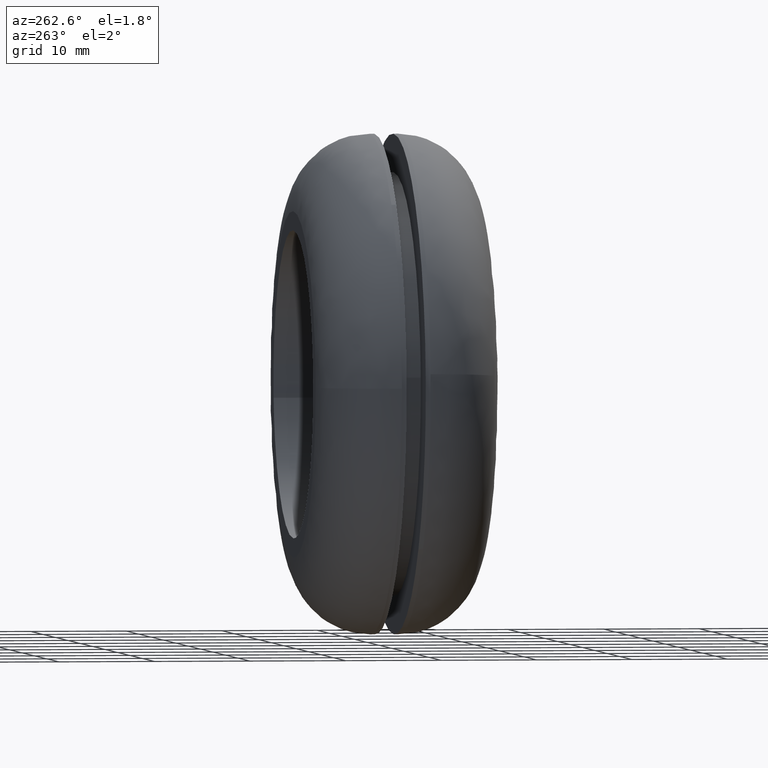
[diagram: clean part render]
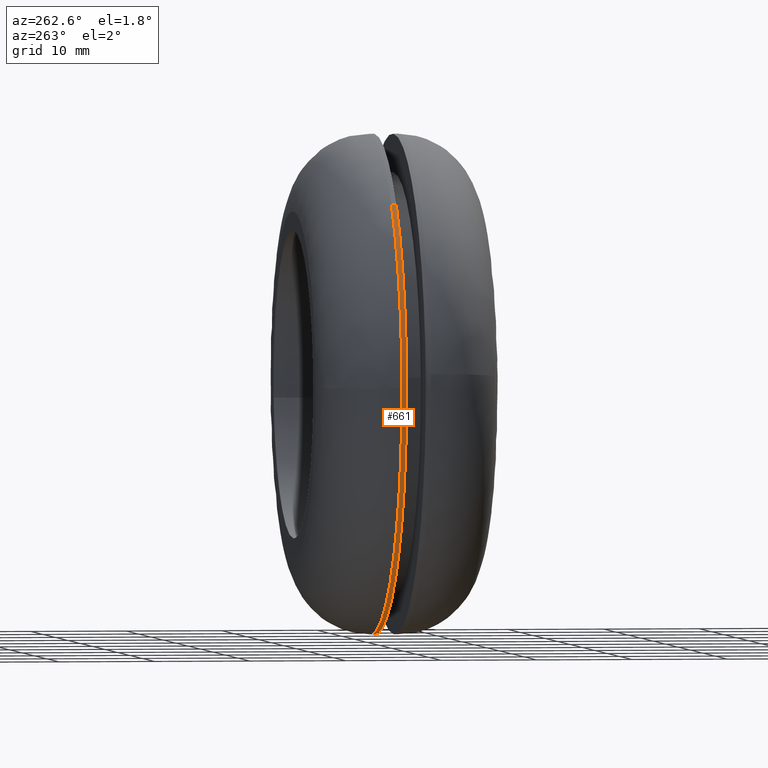
[diagram: same view with one face highlighted and labeled with its STEP entity id]
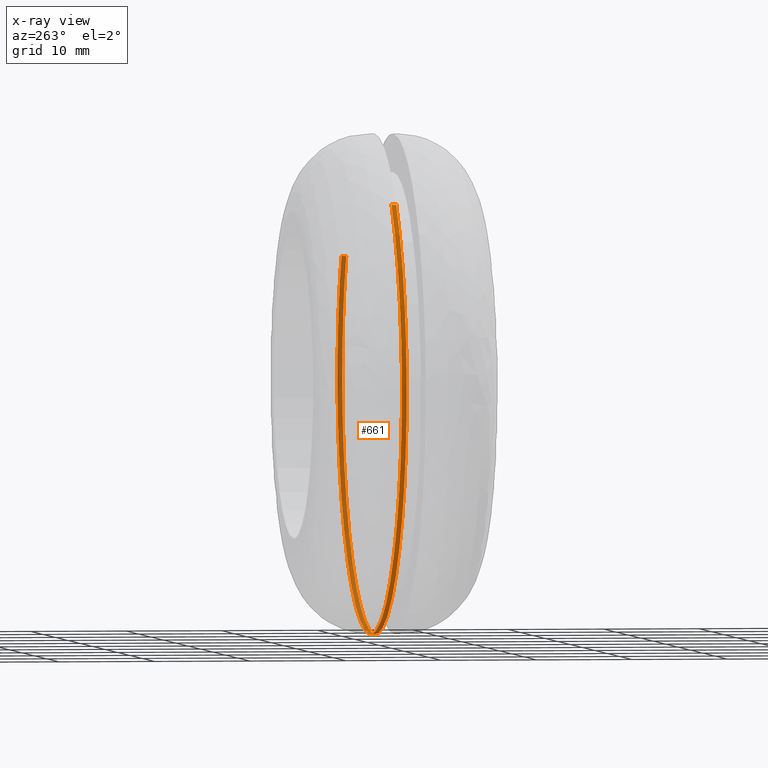
[diagram: x-ray of the same camera — body ghosted, the highlighted face saturated]
A machine part, auxiliary view. The second image highlights one B-rep face of the part: STEP entity #661.
The next image is the same camera in x-ray: the body ghosted, the highlighted face saturated — about 47% of this face is hidden behind the body in this view.
In plain terms, the highlighted face is a freeform B-spline surface patch.
Its self-contained STEP definition (entity closure, byte-faithful):
#464=CARTESIAN_POINT('',(22.748609441721719,10.999995030012050,12.589708831735640));
#465=VERTEX_POINT('',#464);
#481=CARTESIAN_POINT('',(-17.565344340139308,10.999996405808179,19.169211726417540));
#482=VERTEX_POINT('',#481);
#496=CARTESIAN_POINT('',(-17.565344368191440,10.500000000000000,19.169211700715369));
#497=VERTEX_POINT('',#496);
#498=CARTESIAN_POINT('',(-17.565344340139308,10.999996405808179,19.169211726417540));
#499=CARTESIAN_POINT('',(-17.565344368191440,10.500000000000000,19.169211700715369));
#500=QUASI_UNIFORM_CURVE('',1,(#498,#499),.UNSPECIFIED.,.F.,.U.);
#501=EDGE_CURVE('',#482,#497,#500,.T.);
#518=CARTESIAN_POINT('',(22.748609258258821,10.500000000000000,12.589709163242860));
#519=VERTEX_POINT('',#518);
#533=CARTESIAN_POINT('',(22.748609441721719,10.999995030012050,12.589708831735640));
#534=CARTESIAN_POINT('',(22.748609258258821,10.500000000000000,12.589709163242860));
#535=QUASI_UNIFORM_CURVE('',1,(#533,#534),.UNSPECIFIED.,.F.,.U.);
#536=EDGE_CURVE('',#465,#519,#535,.T.);
#541=CARTESIAN_POINT('',(-17.565345398007160,11.012499999999999,19.169210757063219));
#542=CARTESIAN_POINT('',(-36.734556155070372,11.012499999999999,1.603865359056054));
#543=CARTESIAN_POINT('',(-19.169210757063219,11.012499999999999,-17.565345398007160));
#544=CARTESIAN_POINT('',(-1.603865359056054,11.012499999999999,-36.734556155070372));
#545=CARTESIAN_POINT('',(17.565345398007160,11.012499999999999,-19.169210757063219));
#546=CARTESIAN_POINT('',(32.666655632540667,11.012499999999999,-5.331409420651790));
#547=CARTESIAN_POINT('',(22.748607113521377,11.012499999999999,12.589713038613862));
#548=CARTESIAN_POINT('',(-17.565345398007160,10.487187499999999,19.169210757063219));
#549=CARTESIAN_POINT('',(-36.734556155070372,10.487187499999997,1.603865359056054));
#550=CARTESIAN_POINT('',(-19.169210757063219,10.487187499999999,-17.565345398007160));
#551=CARTESIAN_POINT('',(-1.603865359056054,10.487187499999997,-36.734556155070372));
#552=CARTESIAN_POINT('',(17.565345398007160,10.487187499999999,-19.169210757063219));
#553=CARTESIAN_POINT('',(32.666655632540667,10.487187499999997,-5.331409420651790));
#554=CARTESIAN_POINT('',(22.748607113521377,10.487187499999997,12.589713038613862));
#562=(BOUNDED_SURFACE()B_SPLINE_SURFACE(2,1,((#541,#548),(#542,#549),(#543,#550),(#544,#551),(#545,#552),(#546,#553),(#547,#554)),.UNSPECIFIED.,.F.,.F.,.U.)B_SPLINE_SURFACE_WITH_KNOTS((3,2,2,3),(2,2),(0.0,43.078210486801872,86.156420973603744,122.342117782517310),(0.0,1.0),.UNSPECIFIED.)GEOMETRIC_REPRESENTATION_ITEM()RATIONAL_B_SPLINE_SURFACE(((1.0,1.0),(0.707106781186548,0.707106781186548),(1.0,1.0),(0.707106781186548,0.707106781186548),(1.0,1.0),(0.753969696196700,0.753969696196700),(0.921270302782944,0.921270302782944)))REPRESENTATION_ITEM('')SURFACE());
#563=CARTESIAN_POINT('',(25.936707730010632,10.999992535873170,-1.813061534431493));
#564=VERTEX_POINT('',#563);
#565=CARTESIAN_POINT('',(25.936707730010635,10.999992535873174,-1.813061534431493));
#566=CARTESIAN_POINT('',(25.999999999992990,10.999992657366713,-0.907635503972486));
#567=CARTESIAN_POINT('',(25.999999999993111,10.999992787649530,4.789478E-013));
#568=CARTESIAN_POINT('',(25.999999999994028,10.999993751484032,6.714702908939736));
#569=CARTESIAN_POINT('',(22.748609441721715,10.999995030012045,12.589708831735633));
#577=(BOUNDED_CURVE()B_SPLINE_CURVE(2,(#565,#566,#567,#568,#569),.UNSPECIFIED.,.F.,.U.)B_SPLINE_CURVE_WITH_KNOTS((3,2,3),(0.237833706470990,0.250000000000000,0.332484260513151),.UNSPECIFIED.)CURVE()GEOMETRIC_REPRESENTATION_ITEM()RATIONAL_B_SPLINE_CURVE((0.972879918553122,0.985746300509035,1.0,0.903363677747423,0.870495160132561))REPRESENTATION_ITEM(''));
#578=EDGE_CURVE('',#564,#465,#577,.T.);
#579=ORIENTED_EDGE('',*,*,#578,.T.);
#580=ORIENTED_EDGE('',*,*,#536,.T.);
#581=CARTESIAN_POINT('',(0.0,10.500000000000000,-26.0));
#582=VERTEX_POINT('',#581);
#583=CARTESIAN_POINT('',(0.0,10.500000000000000,-26.0));
#584=CARTESIAN_POINT('',(26.000000000000007,10.500000000000000,-26.000000000000007));
#585=CARTESIAN_POINT('',(26.0,10.500000000000000,-3.673819E-016));
#586=CARTESIAN_POINT('',(26.0,10.500000000000000,6.714703111019753));
#587=CARTESIAN_POINT('',(22.748609258258824,10.500000000000000,12.589709163242860));
#595=(BOUNDED_CURVE()B_SPLINE_CURVE(2,(#583,#584,#585,#586,#587),.UNSPECIFIED.,.F.,.U.)B_SPLINE_CURVE_WITH_KNOTS((3,2,3),(0.0,0.250000000000000,0.332484262755645),.UNSPECIFIED.)CURVE()GEOMETRIC_REPRESENTATION_ITEM()RATIONAL_B_SPLINE_CURVE((1.0,0.707106781186547,1.0,0.903363675120178,0.870495158345373))REPRESENTATION_ITEM(''));
#596=EDGE_CURVE('',#582,#519,#595,.T.);
#597=ORIENTED_EDGE('',*,*,#596,.F.);
#598=CARTESIAN_POINT('',(-17.565344368191464,10.500000000000000,19.169211700715408));
#599=CARTESIAN_POINT('',(-25.999999999999996,10.500000000000000,11.440274636793623));
#600=CARTESIAN_POINT('',(-26.0,10.500000000000000,-3.673819E-016));
#601=CARTESIAN_POINT('',(-26.000000000000007,10.500000000000000,-26.000000000000007));
#602=CARTESIAN_POINT('',(0.0,10.500000000000000,-26.0));
#610=(BOUNDED_CURVE()B_SPLINE_CURVE(2,(#598,#599,#600,#601,#602),.UNSPECIFIED.,.F.,.U.)B_SPLINE_CURVE_WITH_KNOTS((3,2,3),(0.618415200974131,0.750000000000000,1.0),.UNSPECIFIED.)CURVE()GEOMETRIC_REPRESENTATION_ITEM()RATIONAL_B_SPLINE_CURVE((0.853959781838990,0.845838818665567,1.0,0.707106781186547,1.0))REPRESENTATION_ITEM(''));
#611=EDGE_CURVE('',#497,#582,#610,.T.);
#612=ORIENTED_EDGE('',*,*,#611,.F.);
#613=ORIENTED_EDGE('',*,*,#501,.F.);
#614=CARTESIAN_POINT('',(-25.997947368348360,10.999992408155631,0.326699605003920));
#615=VERTEX_POINT('',#614);
#616=CARTESIAN_POINT('',(-17.565344340139305,10.999996405808176,19.169211726417540));
#617=CARTESIAN_POINT('',(-25.856639376555272,10.999994070774759,11.571640453322299));
#618=CARTESIAN_POINT('',(-25.997947368348367,10.999992408155631,0.326699605003920));
#626=(BOUNDED_CURVE()B_SPLINE_CURVE(2,(#616,#617,#618),.UNSPECIFIED.,.F.,.U.)B_SPLINE_CURVE_WITH_KNOTS((3,3),(0.618415200753254,0.747784413842901),.UNSPECIFIED.)CURVE()GEOMETRIC_REPRESENTATION_ITEM()RATIONAL_B_SPLINE_CURVE((0.853959781866254,0.845975556801549,0.994854567052929))REPRESENTATION_ITEM(''));
#627=EDGE_CURVE('',#482,#615,#626,.T.);
#628=ORIENTED_EDGE('',*,*,#627,.T.);
#629=CARTESIAN_POINT('',(0.0,11.0,-26.0));
#630=VERTEX_POINT('',#629);
#631=CARTESIAN_POINT('',(-25.997947368348360,10.999992408155629,0.326699605003920));
#632=CARTESIAN_POINT('',(-25.999999999986986,10.999992431707335,0.163356250775127));
#633=CARTESIAN_POINT('',(-25.999999999987029,10.999992455556860,-1.544972E-013));
#634=CARTESIAN_POINT('',(-25.999999999993559,10.999996251479041,-26.000000000000082));
#635=CARTESIAN_POINT('',(0.0,11.0,-26.0));
#643=(BOUNDED_CURVE()B_SPLINE_CURVE(2,(#631,#632,#633,#634,#635),.UNSPECIFIED.,.F.,.U.)B_SPLINE_CURVE_WITH_KNOTS((3,2,3),(0.747784413842901,0.750000000000000,1.0),.UNSPECIFIED.)CURVE()GEOMETRIC_REPRESENTATION_ITEM()RATIONAL_B_SPLINE_CURVE((0.994854567052930,0.997404279355555,1.0,0.707106781186547,1.0))REPRESENTATION_ITEM(''));
#644=EDGE_CURVE('',#615,#630,#643,.T.);
#645=ORIENTED_EDGE('',*,*,#644,.T.);
#646=CARTESIAN_POINT('',(0.0,11.0,-26.0));
#647=CARTESIAN_POINT('',(24.245960846328479,10.999996267936584,-25.999999999999758));
#648=CARTESIAN_POINT('',(25.936707730010635,10.999992535873174,-1.813061534431493));
#656=(BOUNDED_CURVE()B_SPLINE_CURVE(2,(#646,#647,#648),.UNSPECIFIED.,.F.,.U.)B_SPLINE_CURVE_WITH_KNOTS((3,3),(0.0,0.237833706470990),.UNSPECIFIED.)CURVE()GEOMETRIC_REPRESENTATION_ITEM()RATIONAL_B_SPLINE_CURVE((1.0,0.721360480677512,0.972879918553122))REPRESENTATION_ITEM(''));
#657=EDGE_CURVE('',#630,#564,#656,.T.);
#658=ORIENTED_EDGE('',*,*,#657,.T.);
#659=EDGE_LOOP('',(#579,#580,#597,#612,#613,#628,#645,#658));
#660=FACE_OUTER_BOUND('',#659,.T.);
#661=ADVANCED_FACE('',(#660),#562,.T.);